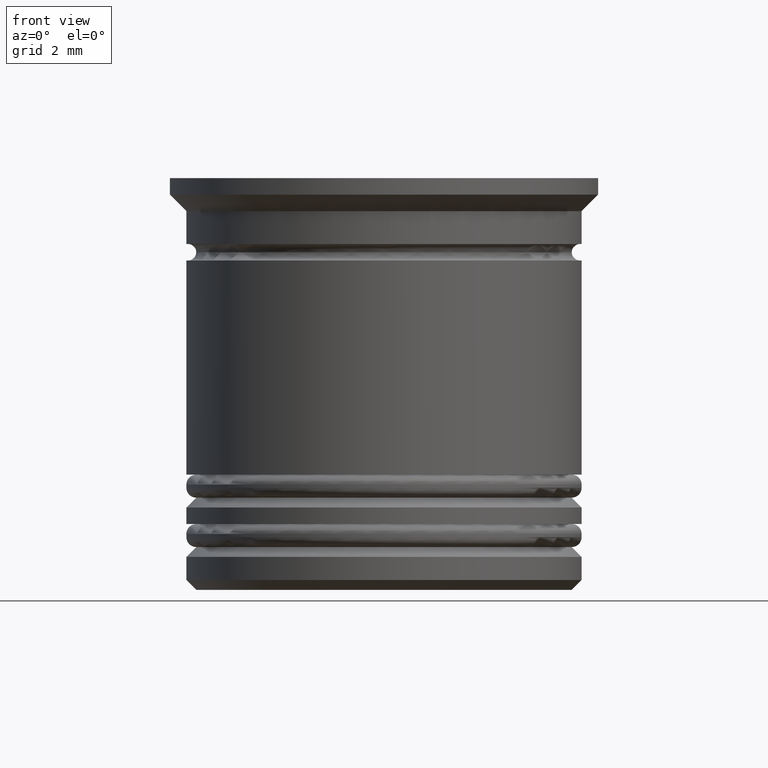
[diagram: clean part render]
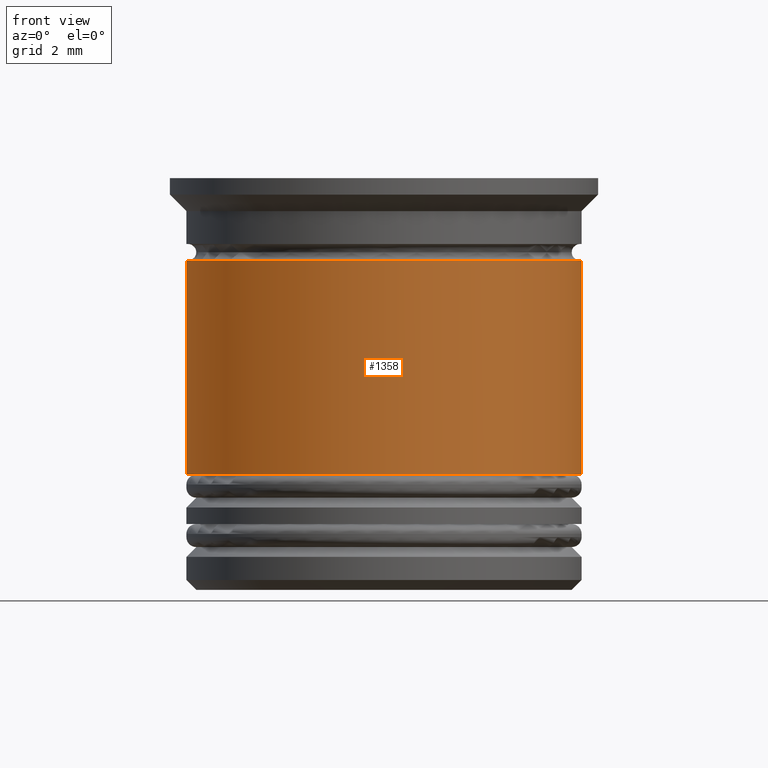
[diagram: same view with one face highlighted and labeled with its STEP entity id]
A machine part, front view. The second image highlights one B-rep face of the part: STEP entity #1358.
In plain terms, the highlighted cylindrical surface (partial cylindrical patch) has radius 6 mm, axis along (-0, -0, 1).
Its self-contained STEP definition (entity closure, byte-faithful):
#88 = EDGE_CURVE ( 'NONE', #359, #413, #863, .T. ) ;
#118 = AXIS2_PLACEMENT_3D ( 'NONE', #701, #1321, #1786 ) ;
#138 = CARTESIAN_POINT ( 'NONE',  ( 6.000000000000001776, 0.000000000000000000, -9.000000000000001776 ) ) ;
#142 = CYLINDRICAL_SURFACE ( 'NONE', #643, 6.000000000000000000 ) ;
#144 = DIRECTION ( 'NONE',  ( 1.000000000000000000, 0.000000000000000000, 0.000000000000000000 ) ) ;
#198 = CARTESIAN_POINT ( 'NONE',  ( -6.000000000000001776, 7.347880794884121708E-16, -9.000000000000001776 ) ) ;
#239 = CARTESIAN_POINT ( 'NONE',  ( -6.000000000000000000, 7.347880794884119736E-16, 0.000000000000000000 ) ) ;
#314 = DIRECTION ( 'NONE',  ( -0.000000000000000000, -0.000000000000000000, 1.000000000000000000 ) ) ;
#345 = AXIS2_PLACEMENT_3D ( 'NONE', #1399, #1247, #144 ) ;
#359 = VERTEX_POINT ( 'NONE', #198 ) ;
#413 = VERTEX_POINT ( 'NONE', #138 ) ;
#468 = DIRECTION ( 'NONE',  ( -0.000000000000000000, -0.000000000000000000, 1.000000000000000000 ) ) ;
#514 = VECTOR ( 'NONE', #468, 1000.000000000000000 ) ;
#616 = DIRECTION ( 'NONE',  ( 1.000000000000000000, 0.000000000000000000, 0.000000000000000000 ) ) ;
#626 = LINE ( 'NONE', #932, #514 ) ;
#643 = AXIS2_PLACEMENT_3D ( 'NONE', #1979, #314, #616 ) ;
#701 = CARTESIAN_POINT ( 'NONE',  ( 0.000000000000000000, 0.000000000000000000, -9.000000000000001776 ) ) ;
#725 = ORIENTED_EDGE ( 'NONE', *, *, #88, .T. ) ;
#853 = DIRECTION ( 'NONE',  ( -0.000000000000000000, -0.000000000000000000, 1.000000000000000000 ) ) ;
#863 = CIRCLE ( 'NONE', #118, 6.000000000000001776 ) ;
#932 = CARTESIAN_POINT ( 'NONE',  ( 6.000000000000000000, 0.000000000000000000, 0.000000000000000000 ) ) ;
#963 = EDGE_CURVE ( 'NONE', #1336, #1896, #1228, .T. ) ;
#1002 = EDGE_CURVE ( 'NONE', #413, #1896, #626, .T. ) ;
#1063 = VECTOR ( 'NONE', #853, 1000.000000000000000 ) ;
#1228 = CIRCLE ( 'NONE', #345, 5.999999999999999112 ) ;
#1236 = EDGE_CURVE ( 'NONE', #359, #1336, #1486, .T. ) ;
#1247 = DIRECTION ( 'NONE',  ( -0.000000000000000000, -0.000000000000000000, 1.000000000000000000 ) ) ;
#1291 = CARTESIAN_POINT ( 'NONE',  ( 5.999999999999999112, 0.000000000000000000, -2.500000000000000000 ) ) ;
#1321 = DIRECTION ( 'NONE',  ( -0.000000000000000000, -0.000000000000000000, 1.000000000000000000 ) ) ;
#1336 = VERTEX_POINT ( 'NONE', #1646 ) ;
#1358 = ADVANCED_FACE ( 'NONE', ( #1542 ), #142, .T. ) ;
#1399 = CARTESIAN_POINT ( 'NONE',  ( 0.000000000000000000, 0.000000000000000000, -2.500000000000000000 ) ) ;
#1433 = ORIENTED_EDGE ( 'NONE', *, *, #963, .F. ) ;
#1486 = LINE ( 'NONE', #239, #1063 ) ;
#1542 = FACE_OUTER_BOUND ( 'NONE', #1644, .T. ) ;
#1644 = EDGE_LOOP ( 'NONE', ( #1821, #725, #1897, #1433 ) ) ;
#1646 = CARTESIAN_POINT ( 'NONE',  ( -5.999999999999999112, 7.347880794884118750E-16, -2.500000000000000000 ) ) ;
#1786 = DIRECTION ( 'NONE',  ( 1.000000000000000000, 0.000000000000000000, 0.000000000000000000 ) ) ;
#1821 = ORIENTED_EDGE ( 'NONE', *, *, #1236, .F. ) ;
#1896 = VERTEX_POINT ( 'NONE', #1291 ) ;
#1897 = ORIENTED_EDGE ( 'NONE', *, *, #1002, .T. ) ;
#1979 = CARTESIAN_POINT ( 'NONE',  ( 0.000000000000000000, 0.000000000000000000, 0.000000000000000000 ) ) ;